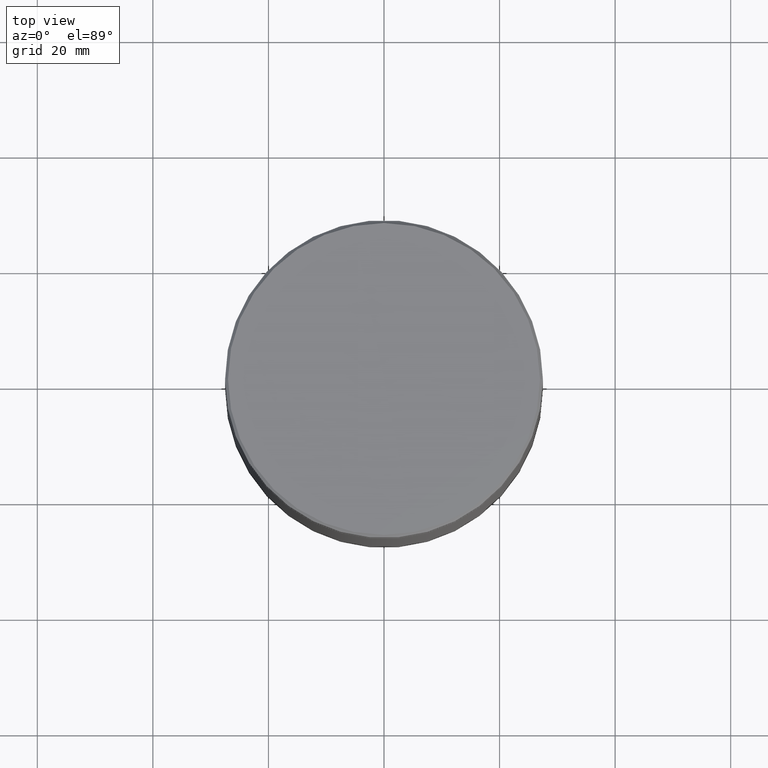
[diagram: clean part render]
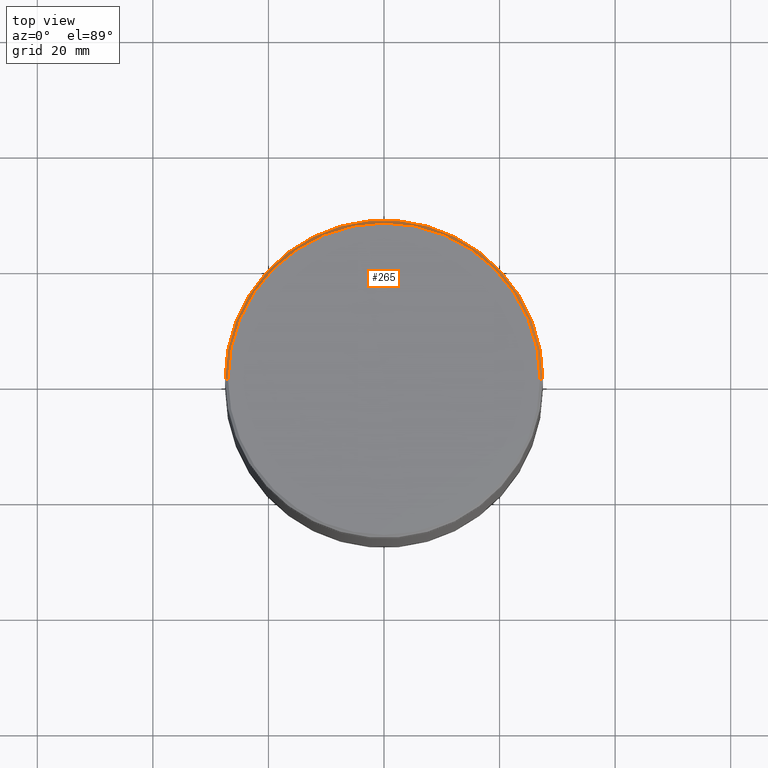
[diagram: same view with one face highlighted and labeled with its STEP entity id]
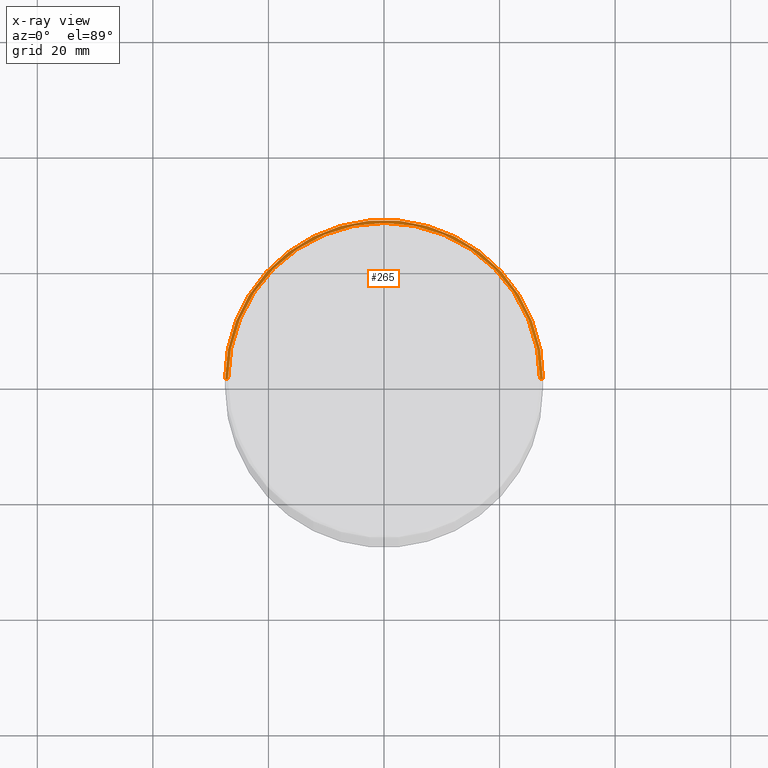
[diagram: x-ray of the same camera — body ghosted, the highlighted face saturated]
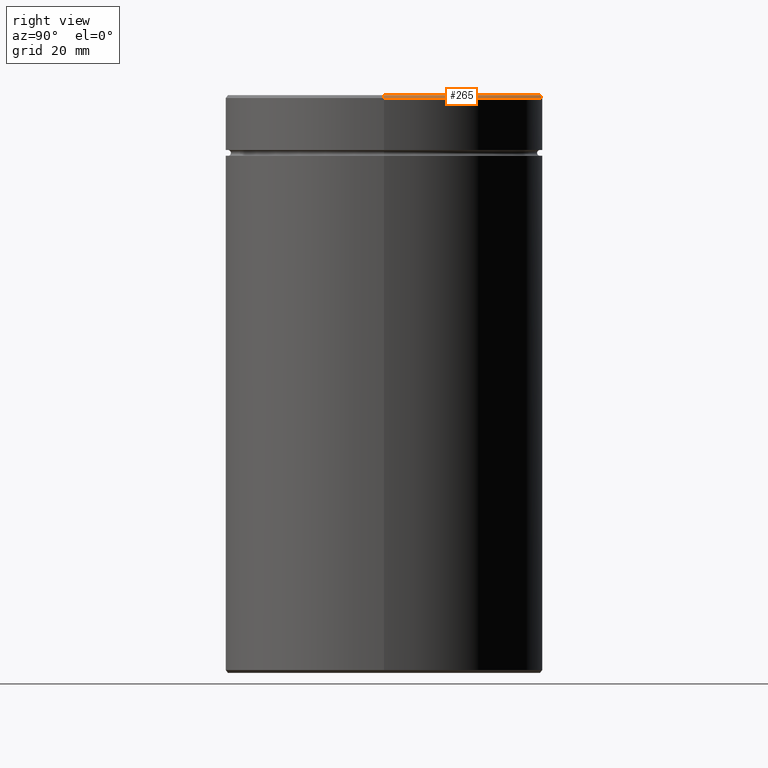
[diagram: same view with one face highlighted and labeled with its STEP entity id]
A machine part, top view. The second image highlights one B-rep face of the part: STEP entity #265.
The next image is the same camera in x-ray: the body ghosted, the highlighted face saturated — about 0% of this face is hidden behind the body in this view.
A second angle (right view) of the same face is appended — the face is thin or edge-on in the first view.
In plain terms, the highlighted conical surface has half-angle 45 deg.
Its self-contained STEP definition (entity closure, byte-faithful):
#20 = EDGE_CURVE ( 'NONE', #549, #146, #377, .T. ) ;
#80 = VECTOR ( 'NONE', #436, 1000.000000000000000 ) ;
#81 = DIRECTION ( 'NONE',  ( 1.000000000000000000, 0.000000000000000000, 0.000000000000000000 ) ) ;
#83 = LINE ( 'NONE', #262, #80 ) ;
#88 = CARTESIAN_POINT ( 'NONE',  ( 0.000000000000000000, 0.000000000000000000, 0.000000000000000000 ) ) ;
#111 = CARTESIAN_POINT ( 'NONE',  ( 0.000000000000000000, 0.000000000000000000, 0.000000000000000000 ) ) ;
#119 = AXIS2_PLACEMENT_3D ( 'NONE', #111, #345, #294 ) ;
#128 = CARTESIAN_POINT ( 'NONE',  ( 0.000000000000000000, 0.000000000000000000, -0.5000000000000143219 ) ) ;
#145 = EDGE_CURVE ( 'NONE', #378, #146, #197, .T. ) ;
#146 = VERTEX_POINT ( 'NONE', #217 ) ;
#161 = ORIENTED_EDGE ( 'NONE', *, *, #20, .T. ) ;
#176 = DIRECTION ( 'NONE',  ( 1.000000000000000000, 0.000000000000000000, 0.000000000000000000 ) ) ;
#181 = EDGE_LOOP ( 'NONE', ( #406, #161, #444, #397 ) ) ;
#197 = CIRCLE ( 'NONE', #372, 27.50000000000000000 ) ;
#198 = CARTESIAN_POINT ( 'NONE',  ( 26.99999999999997868, 3.306546357697850972E-15, 0.000000000000000000 ) ) ;
#217 = CARTESIAN_POINT ( 'NONE',  ( 27.50000000000000000, 0.000000000000000000, -0.5000000000000143219 ) ) ;
#258 = FACE_OUTER_BOUND ( 'NONE', #181, .T. ) ;
#262 = CARTESIAN_POINT ( 'NONE',  ( -26.99999999999997868, 0.000000000000000000, 0.000000000000000000 ) ) ;
#265 = ADVANCED_FACE ( 'NONE', ( #258 ), #355, .T. ) ;
#279 = VERTEX_POINT ( 'NONE', #338 ) ;
#294 = DIRECTION ( 'NONE',  ( -1.000000000000000000, 0.000000000000000000, 0.000000000000000000 ) ) ;
#338 = CARTESIAN_POINT ( 'NONE',  ( -26.99999999999997868, 0.000000000000000000, 0.000000000000000000 ) ) ;
#345 = DIRECTION ( 'NONE',  ( 0.000000000000000000, 0.000000000000000000, -1.000000000000000000 ) ) ;
#355 = CONICAL_SURFACE ( 'NONE', #119, 26.99999999999997868, 0.7853981633974552734 ) ;
#365 = DIRECTION ( 'NONE',  ( -0.000000000000000000, -0.000000000000000000, 1.000000000000000000 ) ) ;
#372 = AXIS2_PLACEMENT_3D ( 'NONE', #128, #485, #81 ) ;
#377 = LINE ( 'NONE', #198, #442 ) ;
#378 = VERTEX_POINT ( 'NONE', #509 ) ;
#397 = ORIENTED_EDGE ( 'NONE', *, *, #501, .F. ) ;
#406 = ORIENTED_EDGE ( 'NONE', *, *, #414, .F. ) ;
#411 = AXIS2_PLACEMENT_3D ( 'NONE', #88, #365, #176 ) ;
#414 = EDGE_CURVE ( 'NONE', #549, #279, #443, .T. ) ;
#436 = DIRECTION ( 'NONE',  ( -0.7071067811865524577, 0.000000000000000000, -0.7071067811865426878 ) ) ;
#442 = VECTOR ( 'NONE', #544, 1000.000000000000000 ) ;
#443 = CIRCLE ( 'NONE', #411, 26.99999999999997868 ) ;
#444 = ORIENTED_EDGE ( 'NONE', *, *, #145, .F. ) ;
#485 = DIRECTION ( 'NONE',  ( 0.000000000000000000, 0.000000000000000000, -1.000000000000000000 ) ) ;
#490 = CARTESIAN_POINT ( 'NONE',  ( 26.99999999999997868, 3.337162527676536337E-15, 0.000000000000000000 ) ) ;
#501 = EDGE_CURVE ( 'NONE', #279, #378, #83, .T. ) ;
#509 = CARTESIAN_POINT ( 'NONE',  ( -27.50000000000000000, 3.367778697655221307E-15, -0.5000000000000143219 ) ) ;
#544 = DIRECTION ( 'NONE',  ( 0.7071067811865524577, 8.659560562354994488E-17, -0.7071067811865426878 ) ) ;
#549 = VERTEX_POINT ( 'NONE', #490 ) ;